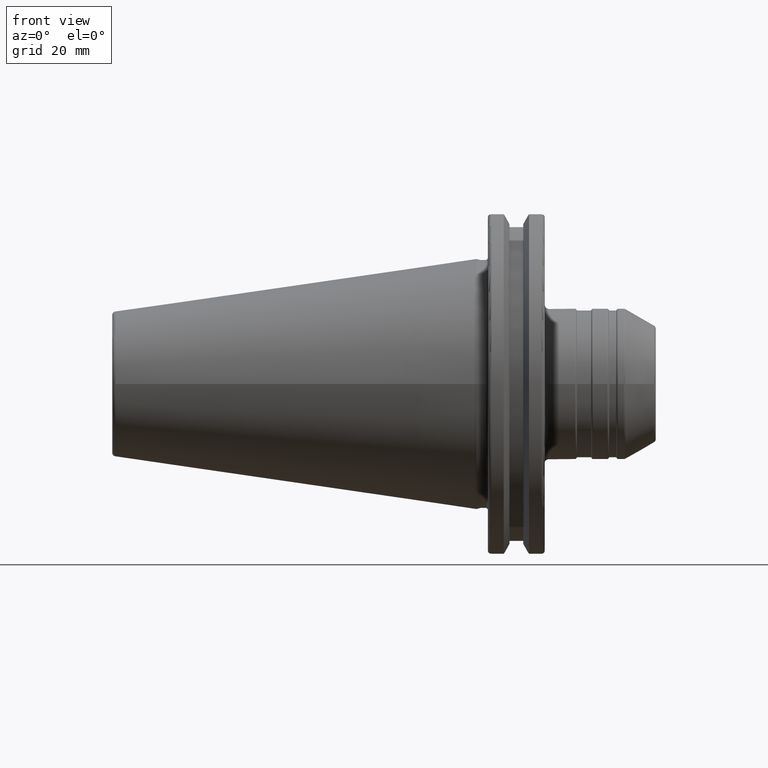
[diagram: clean part render]
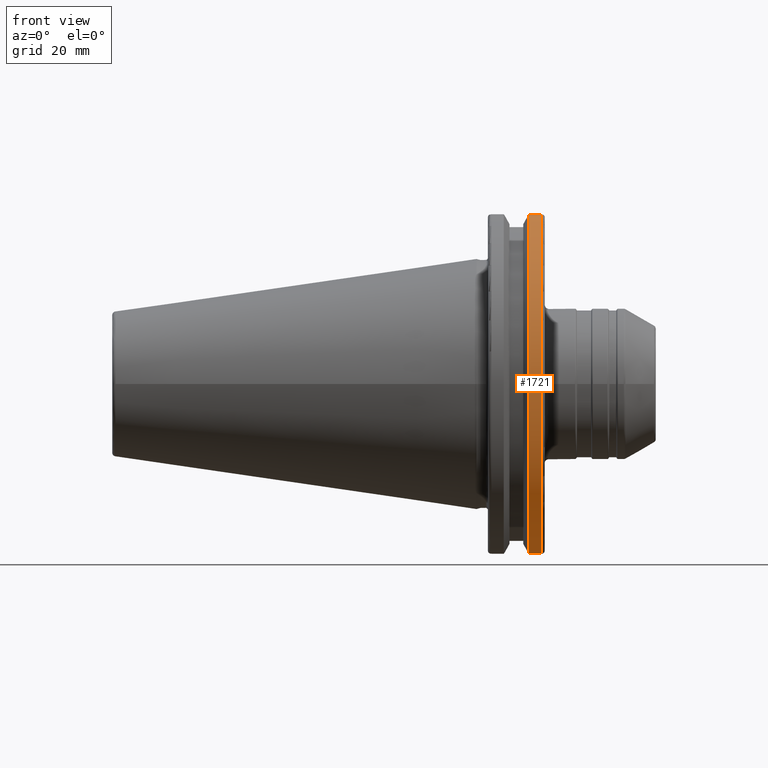
[diagram: same view with one face highlighted and labeled with its STEP entity id]
A machine part, front view. The second image highlights one B-rep face of the part: STEP entity #1721.
In plain terms, the highlighted cylindrical surface (partial cylindrical patch) has radius 49.2125 mm, axis along (1, 0, 0).
Its self-contained STEP definition (entity closure, byte-faithful):
#224=LINE('',#3206,#318);
#225=LINE('',#3212,#319);
#318=VECTOR('',#2459,10.);
#319=VECTOR('',#2462,10.);
#351=CYLINDRICAL_SURFACE('',#1956,49.2125);
#433=FACE_OUTER_BOUND('',#547,.T.);
#547=EDGE_LOOP('',(#1531,#1532,#1533,#1534));
#656=CIRCLE('',#1928,49.2125);
#666=CIRCLE('',#1957,49.2125);
#808=VERTEX_POINT('',#3023);
#809=VERTEX_POINT('',#3032);
#843=VERTEX_POINT('',#3205);
#844=VERTEX_POINT('',#3211);
#1030=EDGE_CURVE('',#808,#809,#656,.T.);
#1083=EDGE_CURVE('',#809,#843,#224,.T.);
#1085=EDGE_CURVE('',#844,#808,#225,.T.);
#1086=EDGE_CURVE('',#844,#843,#666,.T.);
#1531=ORIENTED_EDGE('',*,*,#1030,.F.);
#1532=ORIENTED_EDGE('',*,*,#1085,.F.);
#1533=ORIENTED_EDGE('',*,*,#1086,.T.);
#1534=ORIENTED_EDGE('',*,*,#1083,.F.);
#1721=ADVANCED_FACE('',(#433),#351,.T.);
#1928=AXIS2_PLACEMENT_3D('',#3033,#2377,#2378);
#1956=AXIS2_PLACEMENT_3D('',#3210,#2460,#2461);
#1957=AXIS2_PLACEMENT_3D('',#3213,#2463,#2464);
#2377=DIRECTION('center_axis',(1.,0.,0.));
#2378=DIRECTION('ref_axis',(0.,-1.,1.60812264967664E-16));
#2459=DIRECTION('',(-1.,0.,0.));
#2460=DIRECTION('center_axis',(1.,0.,0.));
#2461=DIRECTION('ref_axis',(0.,-1.,1.22464679914735E-16));
#2462=DIRECTION('',(1.,0.,0.));
#2463=DIRECTION('center_axis',(1.,0.,0.));
#2464=DIRECTION('ref_axis',(0.,0.,-1.));
#3023=CARTESIAN_POINT('',(18.05,-13.4317035994433,47.3440544806494));
#3032=CARTESIAN_POINT('',(18.05,-13.4317035994433,-47.3440544806494));
#3033=CARTESIAN_POINT('Origin',(18.05,0.,0.));
#3205=CARTESIAN_POINT('',(14.6531090340487,-13.4317035994433,-47.3440544806494));
#3206=CARTESIAN_POINT('',(16.8515545170244,-13.4317035994433,-47.3440544806494));
#3210=CARTESIAN_POINT('Origin',(16.8515545170244,0.,0.));
#3211=CARTESIAN_POINT('',(14.6531090340487,-13.4317035994433,47.3440544806494));
#3212=CARTESIAN_POINT('',(16.8515545170244,-13.4317035994433,47.3440544806494));
#3213=CARTESIAN_POINT('Origin',(14.6531090340487,0.,0.));